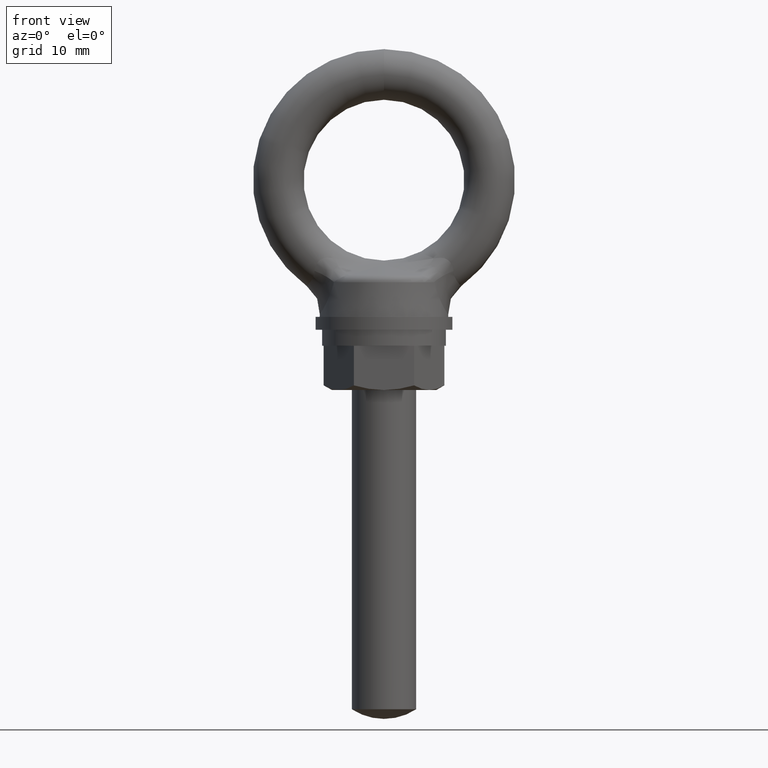
[diagram: clean part render]
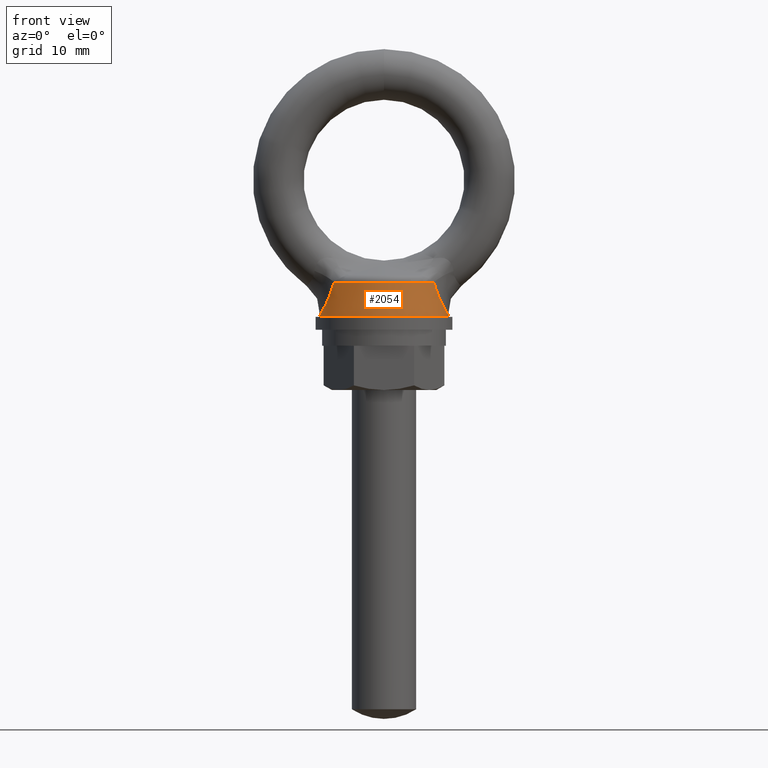
[diagram: same view with one face highlighted and labeled with its STEP entity id]
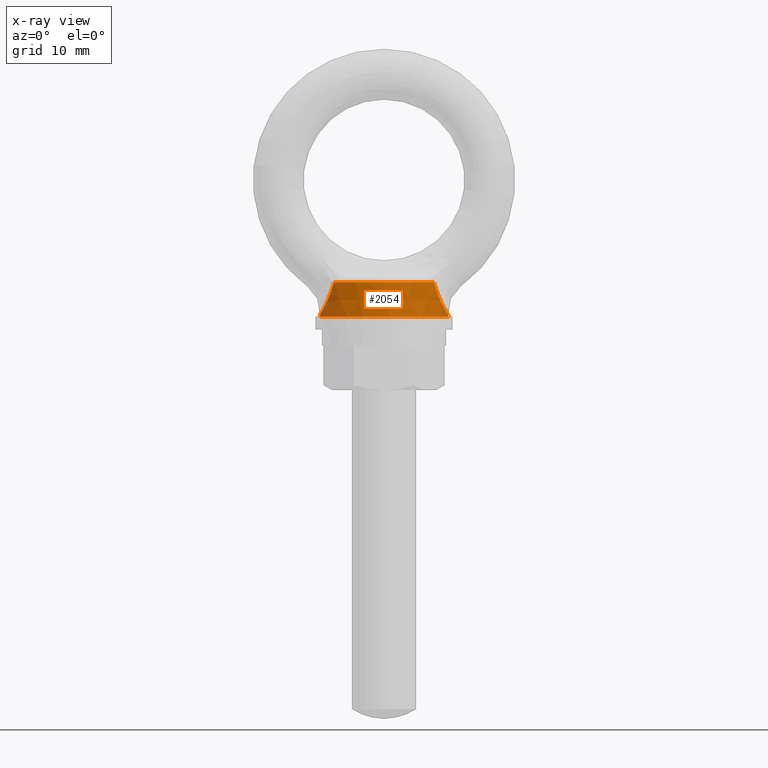
[diagram: x-ray of the same camera — body ghosted, the highlighted face saturated]
A machine part, front view. The second image highlights one B-rep face of the part: STEP entity #2054.
The next image is the same camera in x-ray: the body ghosted, the highlighted face saturated — about 0% of this face is hidden behind the body in this view.
In plain terms, the highlighted conical surface has half-angle 5 deg.
Its self-contained STEP definition (entity closure, byte-faithful):
#97 = VERTEX_POINT ( 'NONE', #6023 ) ;
#109 = VERTEX_POINT ( 'NONE', #5528 ) ;
#1815 = EDGE_CURVE ( 'NONE', #109, #97, #6454, .T. ) ;
#1818 = VERTEX_POINT ( 'NONE', #6439 ) ;
#1820 = EDGE_CURVE ( 'NONE', #1821, #1818, #6438, .T. ) ;
#1821 = VERTEX_POINT ( 'NONE', #6434 ) ;
#1840 = ORIENTED_EDGE ( 'NONE', *, *, #1815, .F. ) ;
#1841 = ORIENTED_EDGE ( 'NONE', *, *, #1842, .T. ) ;
#1842 = EDGE_CURVE ( 'NONE', #109, #1843, #6328, .T. ) ;
#1843 = VERTEX_POINT ( 'NONE', #6329 ) ;
#1844 = ORIENTED_EDGE ( 'NONE', *, *, #1845, .T. ) ;
#1845 = EDGE_CURVE ( 'NONE', #1843, #1846, #6428, .T. ) ;
#1846 = VERTEX_POINT ( 'NONE', #6429 ) ;
#1847 = ORIENTED_EDGE ( 'NONE', *, *, #1848, .T. ) ;
#1848 = EDGE_CURVE ( 'NONE', #1846, #1821, #6407, .T. ) ;
#1849 = ORIENTED_EDGE ( 'NONE', *, *, #1820, .T. ) ;
#1850 = ORIENTED_EDGE ( 'NONE', *, *, #2011, .F. ) ;
#2011 = EDGE_CURVE ( 'NONE', #97, #1818, #6993, .T. ) ;
#2054 = ADVANCED_FACE ( 'NONE', ( #6939 ), #6938, .T. ) ;
#2055 = EDGE_LOOP ( 'NONE', ( #1840, #1841, #1844, #1847, #1849, #1850 ) ) ;
#5528 = CARTESIAN_POINT ( 'NONE',  ( 7.978061295766676300, 2.547687685380514800E-011, -16.74923997788642900 ) ) ;
#6023 = CARTESIAN_POINT ( 'NONE',  ( 8.000000000000000000, 9.796850830579018100E-016, -17.00000000000000000 ) ) ;
#6327 = CARTESIAN_POINT ( 'NONE',  ( 7.978061295766676300, 2.547687685380514800E-011, -16.74923997788642900 ) ) ;
#6328 = B_SPLINE_CURVE_WITH_KNOTS ( 'NONE', 3,
 ( #6327, #6424, #6423, #6422, #6421, #6420, #6419, #6418, #6417, #6416, #6415, #6414, #6413, #6412, #6411, #6410 ),
 .UNSPECIFIED., .F., .F.,
 ( 4, 2, 2, 2, 2, 2, 2, 4 ),
 ( 0.006793258513159759400, 0.007643701321121404800, 0.008494144129083050200, 0.009344586937044695500, 0.01019502974500634100, 0.01104547255296798600, 0.01189591536092963000, 0.01359680097685291700 ),
 .UNSPECIFIED. ) ;
#6329 = CARTESIAN_POINT ( 'NONE',  ( 6.210392761138069600, -4.421908272886815500, -12.69996661424272100 ) ) ;
#6391 = CARTESIAN_POINT ( 'NONE',  ( -7.381771383096067400, -2.784521537567979700, -15.70467943273328300 ) ) ;
#6392 = CARTESIAN_POINT ( 'NONE',  ( -7.191972160612237100, -3.162662739913071800, -15.32910516627604900 ) ) ;
#6393 = CARTESIAN_POINT ( 'NONE',  ( -7.093108766145618900, -3.334768518180765400, -15.12382258030863200 ) ) ;
#6394 = CARTESIAN_POINT ( 'NONE',  ( -6.899242522336977300, -3.639404277857394300, -14.69389256611365500 ) ) ;
#6395 = CARTESIAN_POINT ( 'NONE',  ( -6.803290993242570500, -3.773784452342339600, -14.46741059988001900 ) ) ;
#6396 = CARTESIAN_POINT ( 'NONE',  ( -6.617505508660244100, -4.011256946778234000, -13.99249650156616900 ) ) ;
#6397 = CARTESIAN_POINT ( 'NONE',  ( -6.527258717941119700, -4.114688659261674700, -13.74266899169101900 ) ) ;
#6398 = CARTESIAN_POINT ( 'NONE',  ( -6.359387483970397900, -4.290113183179031800, -13.23087931092761400 ) ) ;
#6399 = CARTESIAN_POINT ( 'NONE',  ( -6.281497496774276700, -4.362544022843335000, -12.96846117206049700 ) ) ;
#6405 = CARTESIAN_POINT ( 'NONE',  ( -6.210392761138069600, -4.421908272886815500, -12.69996661424272100 ) ) ;
#6407 = B_SPLINE_CURVE_WITH_KNOTS ( 'NONE', 3,
 ( #6405, #6399, #6398, #6397, #6396, #6395, #6394, #6393, #6392, #6391, #6556, #6555, #6554, #6553, #6552, #6551, #6550, #6549 ),
 .UNSPECIFIED., .F., .F.,
 ( 4, 2, 2, 2, 2, 2, 2, 2, 4 ),
 ( 0.0000000000000000000, 0.0008491573141449697100, 0.001698314628289939400, 0.002547471942434909100, 0.003396629256579878800, 0.004245786570724849000, 0.005094943884869818300, 0.005944101199014787500, 0.006793258513159757700 ),
 .UNSPECIFIED. ) ;
#6409 = DIRECTION ( 'NONE',  ( 1.000000000000000000, 0.0000000000000000000, 0.0000000000000000000 ) ) ;
#6410 = CARTESIAN_POINT ( 'NONE',  ( 6.210392761138069600, -4.421908272886815500, -12.69996661424272100 ) ) ;
#6411 = CARTESIAN_POINT ( 'NONE',  ( 6.352774983116773900, -4.303035545892444500, -13.23760804401850100 ) ) ;
#6412 = CARTESIAN_POINT ( 'NONE',  ( 6.521835315794028500, -4.133273454851131800, -13.74751196352282900 ) ) ;
#6413 = CARTESIAN_POINT ( 'NONE',  ( 6.802326438138771400, -3.775150612293931600, -14.46515609343281400 ) ) ;
#6414 = CARTESIAN_POINT ( 'NONE',  ( 6.900199435006724600, -3.638051344731992200, -14.69613900649317300 ) ) ;
#6415 = CARTESIAN_POINT ( 'NONE',  ( 7.094806094114285400, -3.331948585593760300, -15.12746064357346600 ) ) ;
#6416 = CARTESIAN_POINT ( 'NONE',  ( 7.192233262825612700, -3.162189189056240600, -15.32963966651834300 ) ) ;
#6417 = CARTESIAN_POINT ( 'NONE',  ( 7.382050305574232100, -2.783919052358373200, -15.70521348130625800 ) ) ;
#6418 = CARTESIAN_POINT ( 'NONE',  ( 7.474527990394009600, -2.574390398047316600, -15.87859289991847700 ) ) ;
#6419 = CARTESIAN_POINT ( 'NONE',  ( 7.640562853530668400, -2.129507459972070900, -16.17964746929633800 ) ) ;
#6420 = CARTESIAN_POINT ( 'NONE',  ( 7.715214405743791900, -1.892333759044080700, -16.30952380188658400 ) ) ;
#6421 = CARTESIAN_POINT ( 'NONE',  ( 7.841414596894221500, -1.384548204637224200, -16.52470576121613600 ) ) ;
#6422 = CARTESIAN_POINT ( 'NONE',  ( 7.892762876651934400, -1.111512915870893400, -16.60965174227722900 ) ) ;
#6423 = CARTESIAN_POINT ( 'NONE',  ( 7.960509930743504500, -0.5627155035198899700, -16.72093056700588300 ) ) ;
#6424 = CARTESIAN_POINT ( 'NONE',  ( 7.978061295767733300, -0.2837480271616552600, -16.74923997788813800 ) ) ;
#6425 = DIRECTION ( 'NONE',  ( 0.0000000000000000000, 0.0000000000000000000, -1.000000000000000000 ) ) ;
#6426 = CARTESIAN_POINT ( 'NONE',  ( 0.0000000000000000000, 0.0000000000000000000, -12.69996661424272100 ) ) ;
#6427 = AXIS2_PLACEMENT_3D ( 'NONE', #6426, #6425, #6409 ) ;
#6428 = CIRCLE ( 'NONE', #6427, 7.623795053739380400 ) ;
#6429 = CARTESIAN_POINT ( 'NONE',  ( -6.210392761138069600, -4.421908272886815500, -12.69996661424272100 ) ) ;
#6434 = CARTESIAN_POINT ( 'NONE',  ( -7.978061295766676300, -2.547674772147074800E-011, -16.74923997788642900 ) ) ;
#6435 = DIRECTION ( 'NONE',  ( -0.08715592029086469100, 0.0000000000000000000, -0.9961946825587118000 ) ) ;
#6436 = VECTOR ( 'NONE', #6435, 1000.000000000000000 ) ;
#6437 = CARTESIAN_POINT ( 'NONE',  ( -8.000000000000000000, 0.0000000000000000000, -17.00000000000000000 ) ) ;
#6438 = LINE ( 'NONE', #6437, #6436 ) ;
#6439 = CARTESIAN_POINT ( 'NONE',  ( -8.000000000000000000, 0.0000000000000000000, -17.00000000000000000 ) ) ;
#6445 = DIRECTION ( 'NONE',  ( 0.08715592029086469100, 1.067316937614295400E-017, -0.9961946825587118000 ) ) ;
#6446 = VECTOR ( 'NONE', #6445, 1000.000000000000000 ) ;
#6447 = CARTESIAN_POINT ( 'NONE',  ( 8.000000000000000000, 9.796850830579018100E-016, -17.00000000000000000 ) ) ;
#6454 = LINE ( 'NONE', #6447, #6446 ) ;
#6549 = CARTESIAN_POINT ( 'NONE',  ( -7.978061295766676300, -2.547674772147074800E-011, -16.74923997788642900 ) ) ;
#6550 = CARTESIAN_POINT ( 'NONE',  ( -7.978061295765623800, -0.2833191255498201900, -16.74923997788471700 ) ) ;
#6551 = CARTESIAN_POINT ( 'NONE',  ( -7.959795342409210900, -0.5718046275041914800, -16.71977356463808200 ) ) ;
#6552 = CARTESIAN_POINT ( 'NONE',  ( -7.890987243053435100, -1.122473905029034400, -16.60671778006374700 ) ) ;
#6553 = CARTESIAN_POINT ( 'NONE',  ( -7.840879418701055300, -1.387375438696458300, -16.52382155039643400 ) ) ;
#6554 = CARTESIAN_POINT ( 'NONE',  ( -7.713738907019217300, -1.897586032504910500, -16.30697918787685900 ) ) ;
#6555 = CARTESIAN_POINT ( 'NONE',  ( -7.637741625136117200, -2.137843358775209300, -16.17464781627291600 ) ) ;
#6556 = CARTESIAN_POINT ( 'NONE',  ( -7.472070239655748100, -2.580174103661142300, -15.87401695488658700 ) ) ;
#6934 = DIRECTION ( 'NONE',  ( -1.000000000000000000, 0.0000000000000000000, 0.0000000000000000000 ) ) ;
#6935 = DIRECTION ( 'NONE',  ( 0.0000000000000000000, 0.0000000000000000000, -1.000000000000000000 ) ) ;
#6936 = CARTESIAN_POINT ( 'NONE',  ( 0.0000000000000000000, 0.0000000000000000000, -17.00000000000000000 ) ) ;
#6937 = AXIS2_PLACEMENT_3D ( 'NONE', #6936, #6935, #6934 ) ;
#6938 = CONICAL_SURFACE ( 'NONE', #6937, 8.000000000000000000, 0.08726664082111058900 ) ;
#6939 = FACE_OUTER_BOUND ( 'NONE', #2055, .T. ) ;
#6990 = DIRECTION ( 'NONE',  ( -1.000000000000000000, 0.0000000000000000000, 0.0000000000000000000 ) ) ;
#6991 = DIRECTION ( 'NONE',  ( 0.0000000000000000000, 0.0000000000000000000, -1.000000000000000000 ) ) ;
#6992 = AXIS2_PLACEMENT_3D ( 'NONE', #6998, #6991, #6990 ) ;
#6993 = CIRCLE ( 'NONE', #6992, 8.000000000000000000 ) ;
#6998 = CARTESIAN_POINT ( 'NONE',  ( 0.0000000000000000000, 0.0000000000000000000, -17.00000000000000000 ) ) ;